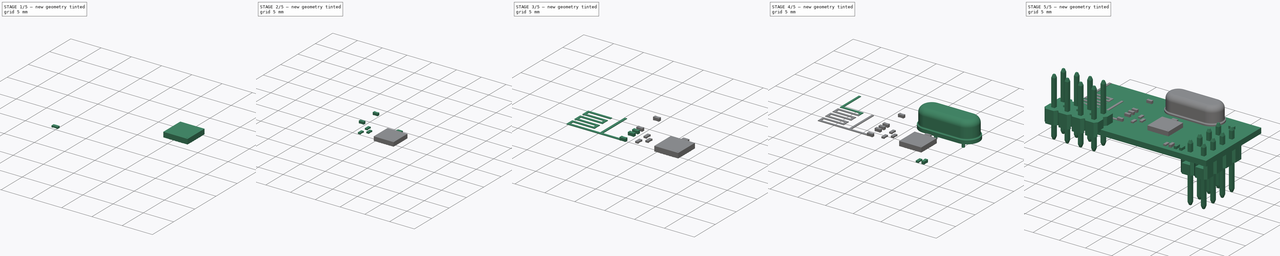
[diagram: build sequence overview — one tinted view per stage of 5, left to right]
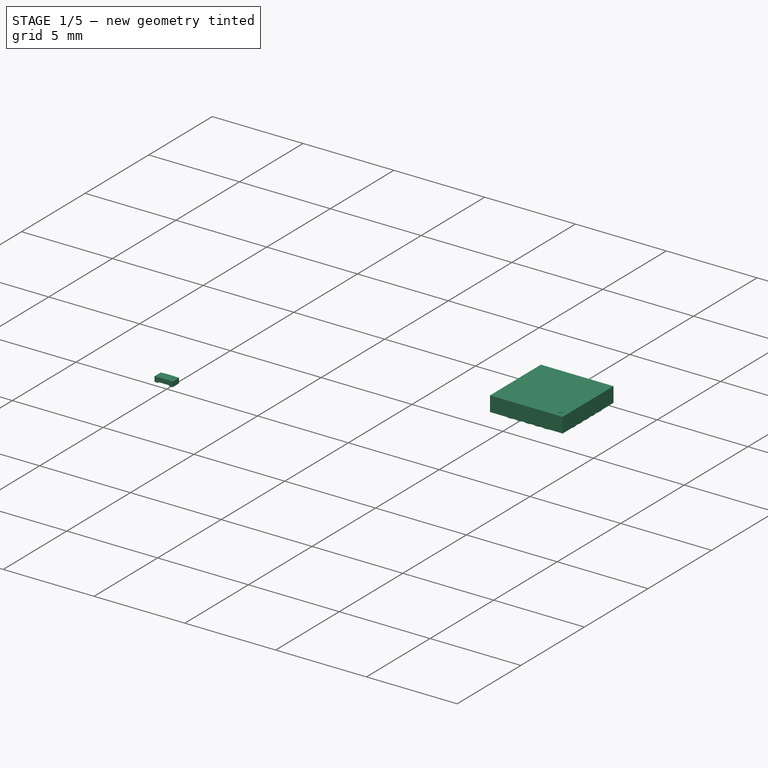
[diagram: stage 1 of 5 — iso view after this stage's code; geometry added in this stage tinted green]
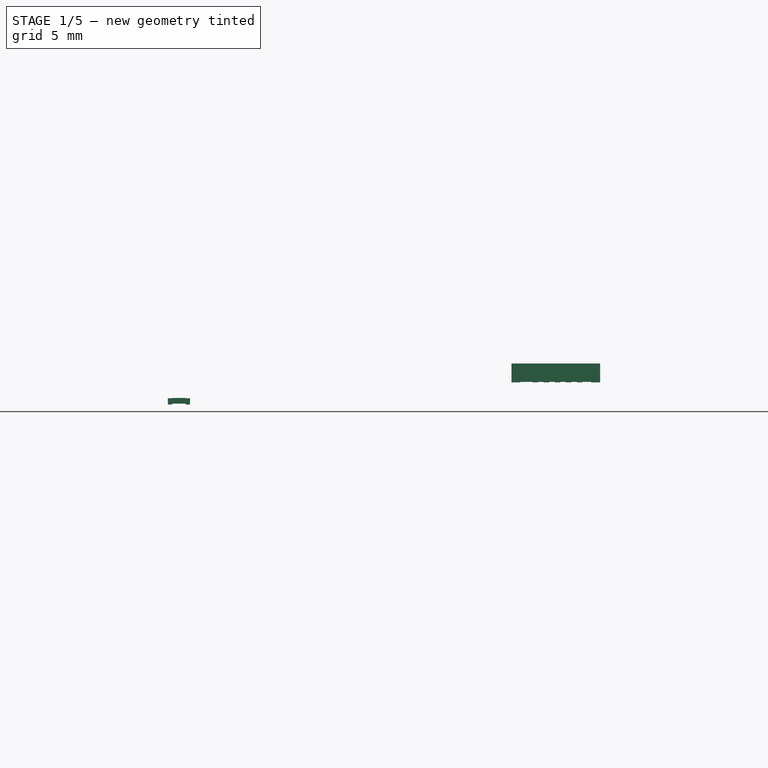
[diagram: stage 1 of 5 — front view after this stage's code; geometry added in this stage tinted green]
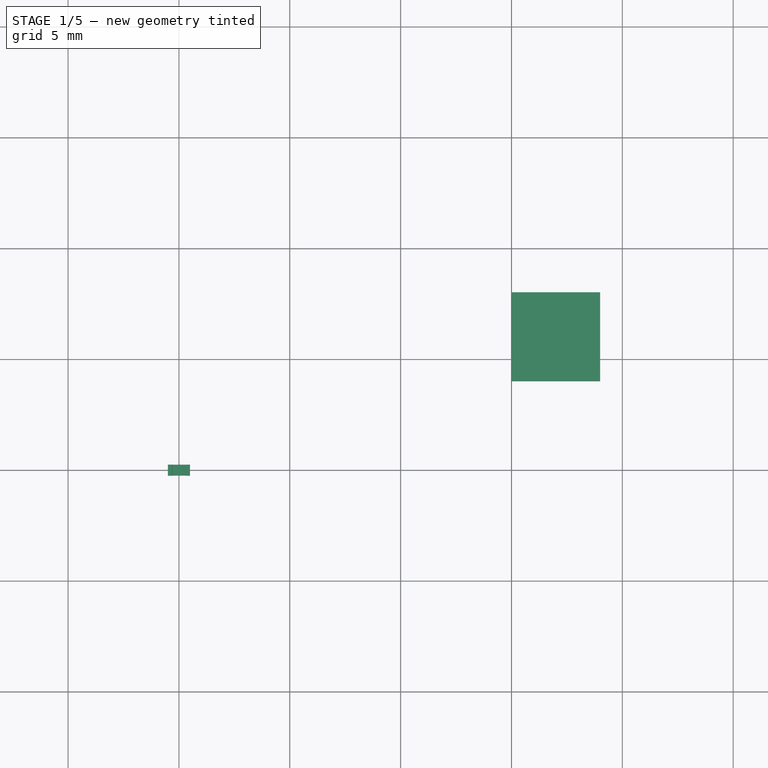
[diagram: stage 1 of 5 — top view after this stage's code; geometry added in this stage tinted green]
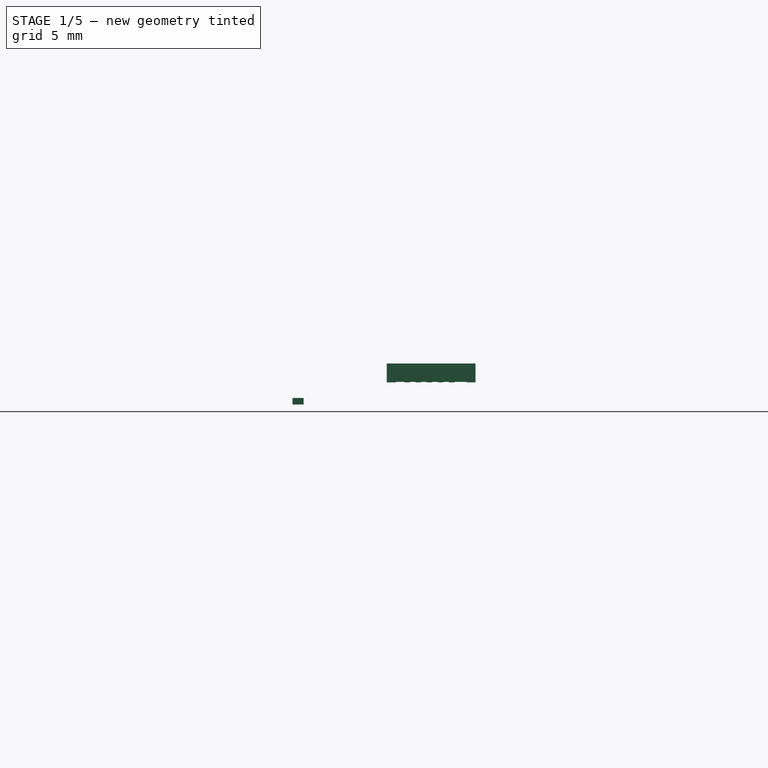
[diagram: stage 1 of 5 — right view after this stage's code; geometry added in this stage tinted green]
FCSTD DOCUMENT  (FreeCAD 0.14R3702 (Git))
Label: Nordic NRF24L01_plus
License: CC-BY 3.0
LicenseURL: http://creativecommons.org/licenses/by/3.0/
objects: Part::MultiFuse×22, Part::Box×20, Part::FeaturePython×16, App::DocumentObjectGroup×5, Part::Cylinder×4, PartDesign::Pad×3, Part::Mirroring×3, PartDesign::Pocket×2, Part::Feature×2, Part::Fillet×2, Sketcher::SketchObject×2, Part::Loft×1, PartDesign::Revolution×1, Part::Cut×1, App::Annotation×1
note: 85 computed .brp shape members not serialized (recipe doc carries the construction recipe); baked Part::Feature solids carry a one-line shape summary decoded from their .brp

FEATURE [Part::FeaturePython] Clone002  label="body001"  # WARN: FeaturePython — macro-defined, semantics opaque (R4)
  Placement = pos=(-0.46,-0.24,0.04) rot=(0,0,1;0rad)
  Scale = (1,1,1)
FEATURE [Part::FeaturePython] Clone003  label="side-right"  # WARN: FeaturePython — macro-defined, semantics opaque (R4)
  Placement = pos=(0.3,4.3713e-08,0) rot=(1,0,0;1.5708rad)
  Scale = (1,1,1)
FEATURE [Part::FeaturePython] Clone004  label="top-part"  # WARN: FeaturePython — macro-defined, semantics opaque (R4)
  Scale = (1,1,1)
FEATURE [Part::FeaturePython] Clone005  label="side-left"  # WARN: FeaturePython — macro-defined, semantics opaque (R4)
  Scale = (1,1,1)
FEATURE [Part::Box] Box019  label="Cubo015"
  Height = 0.83
  Length = 4
  Width = 4
FEATURE [Part::Cylinder] Cylinder002  label="Cilindro"
  Angle = 360
  Height = 0.198
  Placement = pos=(0.3,0.3,0.8) rot=(0,0,1;0rad)
  Radius = 0.1
FEATURE [Part::Cut] Cut  label="body003"
  Base = -> Box019
  Placement = pos=(19,4,1.02) rot=(0,0,1;1.5708rad)
  Tool = -> Cylinder002
FEATURE [Part::Cylinder] Cylinder003  label="Cilindro001"
  Angle = 360
  Height = 0.2
  Placement = pos=(0,0.125,0) rot=(0,0,1;0rad)
  Radius = 0.125
FEATURE [Part::Box] Box020  label="Cubo016"
  Height = 0.2
  Length = 0.275
  Width = 0.25
FEATURE [Part::MultiFuse] Fusion020  label="pad_001"
  Placement = pos=(0.275,0,-0.02) rot=(0,0,1;3.14159rad)
  Shapes = -> [Cylinder003,Box020]
FEATURE [Part::FeaturePython] Array004  # Draft array (typed FeaturePython)
  Angle = 360
  ArrayType = 0
  Axis = (0,0,1)
  Base = -> Fusion020
  Center = (0,0,0)
  IntervalX = (1,0,0)
  IntervalY = (0,0.5,0)
  IntervalZ = (0,0,1)
  NumberPolar = 1
  NumberX = 1
  NumberY = 5
  NumberZ = 1
  Placement = pos=(0,-2.8,0) rot=(0,0,1;0rad)
FEATURE [Part::FeaturePython] Clone011  label="Clone of Array"  # Draft clone (typed FeaturePython)
  Objects = -> [Array004]
  Placement = pos=(4,-1.05,0) rot=(0,0,1;3.14159rad)
  Scale = (1,1,1)
FEATURE [Part::FeaturePython] Clone012  label="Clone of Clone of Array"  # Draft clone (typed FeaturePython)
  Objects = -> [Clone011]
  Placement = pos=(1.05,0,0) rot=(0,0,-1;1.5708rad)
  Scale = (1,1,1)
FEATURE [Part::FeaturePython] Clone013  label="Clone of Clone of Clone of Array"  # Draft clone (typed FeaturePython)
  Objects = -> [Clone012]
  Placement = pos=(2.8,-4,0) rot=(0,0,1;1.5708rad)
  Scale = (1,1,1)
FEATURE [Part::MultiFuse] Fusion021  label="pads"
  Placement = pos=(19,4,1.02) rot=(0,0,1;3.14159rad)
  Shapes = -> [Array004,Clone011,Clone012,Clone013]
FEATURE [App::Annotation] Text
  LabelText = NRF | 24L01+
  Position = (18.3,5.25,1.85)
FEATURE [App::DocumentObjectGroup] Grupo  label="Module nRF24L01+"
  Group = -> [Group,Group001,Group002,Fusion001,Fusion002,Fusion003,Fusion004,Fusion005,Fusion006,Group003,Fusion009,Fusion011,Fusion012,Fusion013,Fusion014,Fusion015,Fusion016,Fusion017,Fusion018,Fusion019,Cut,Fusion021,Text,Box,Fusion010]
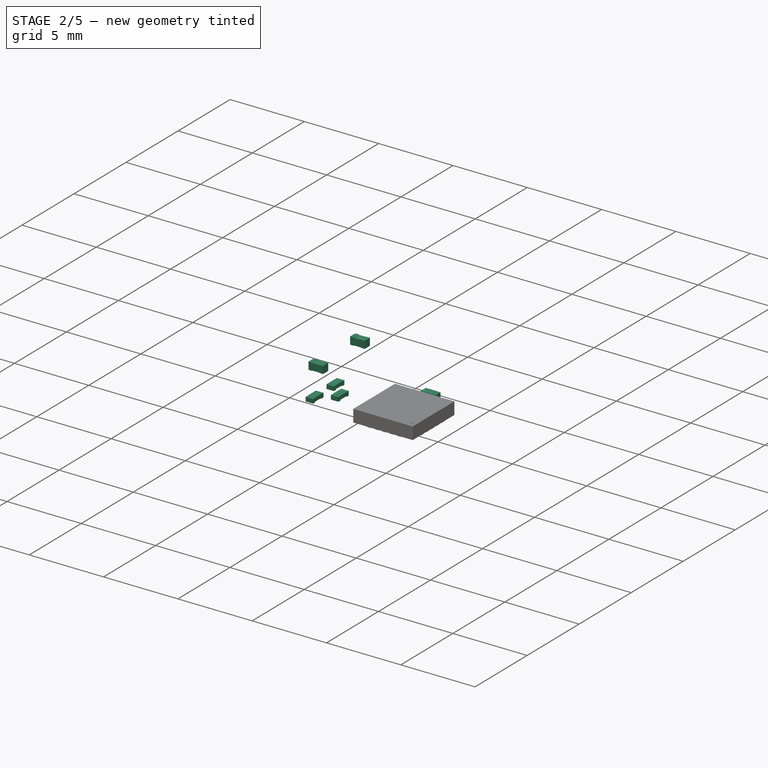
[diagram: stage 2 of 5 — iso view after this stage's code; geometry added in this stage tinted green]
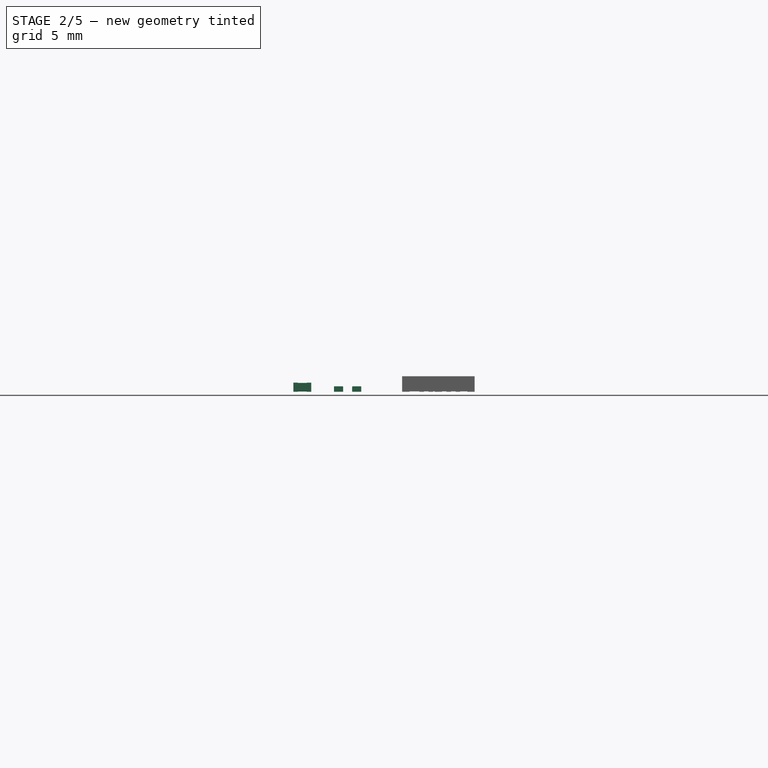
[diagram: stage 2 of 5 — front view after this stage's code; geometry added in this stage tinted green]
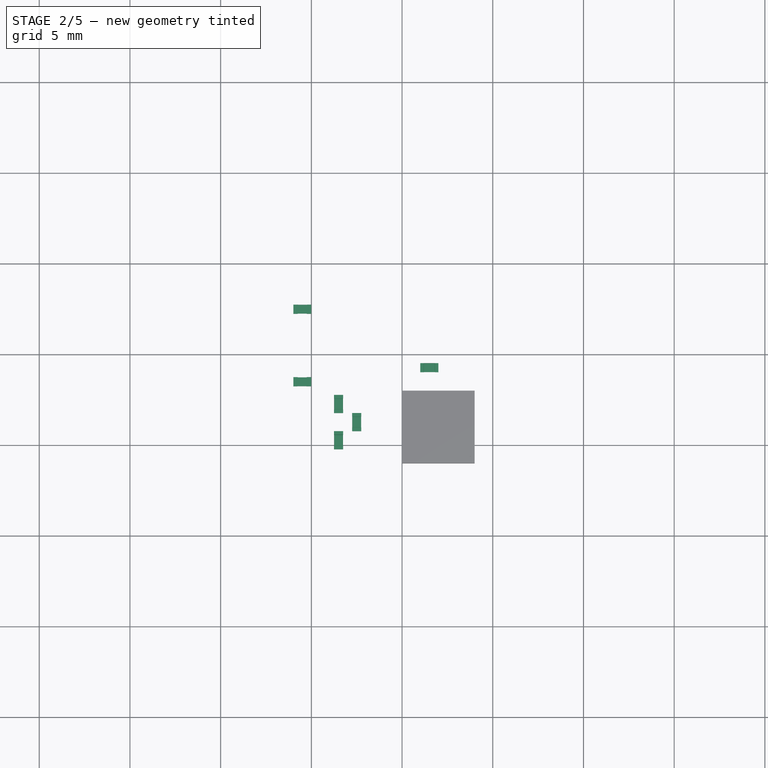
[diagram: stage 2 of 5 — top view after this stage's code; geometry added in this stage tinted green]
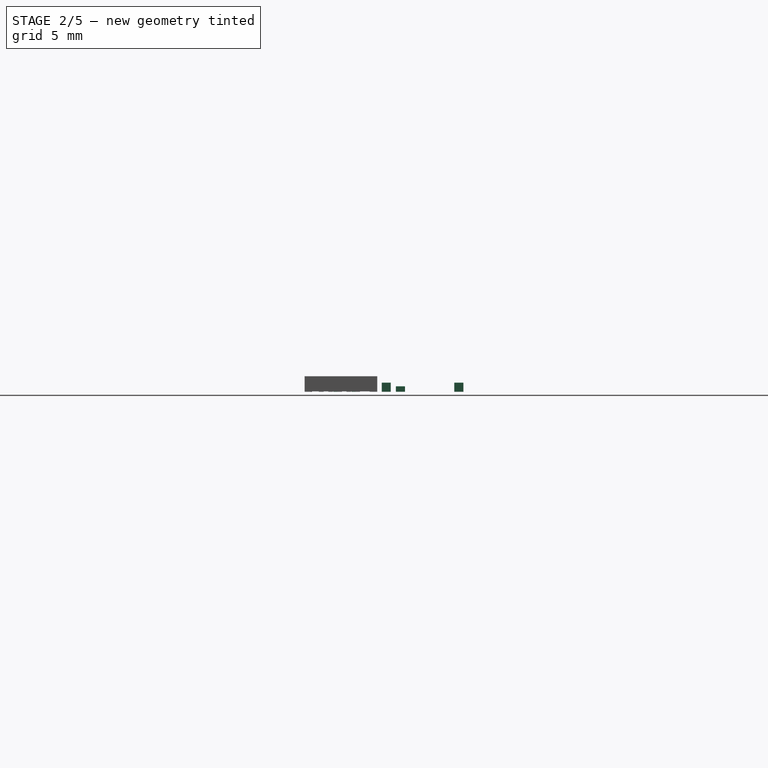
[diagram: stage 2 of 5 — right view after this stage's code; geometry added in this stage tinted green]
FEATURE [App::DocumentObjectGroup] Group001  label="pin-src"
  Group = -> [Loft,Pad,Part__Mirroring,Fusion,Array001]
FEATURE [Part::Feature] Array002  label="pin-support-array"
  Placement = pos=(27.5,9.1,0) rot=(0.707107,-0.707107,0;3.14159rad)
  shape: bbox 5.08 x 10.16 x 2.54 mm, 176 faces, 8 solids (baked)
FEATURE [Part::Feature] Array003  label="pin-array001"
  Placement = pos=(27.5,9.1,0) rot=(0.707107,-0.707107,0;3.14159rad)
  shape: bbox 3.18 x 8.26 x 11.2 mm, 112 faces, 8 solids (baked)
FEATURE [Part::Box] Box001  label="Cube"
  Height = 0.47
  Length = 0.5
  Placement = pos=(-0.25,-0.24,0.015) rot=(0,0,1;0rad)
  Width = 0.48
FEATURE [Part::Fillet] Fillet  label="body-src"
  Base = -> Box001
  Edges = 4 edges r=0.01: [Edge9,Edge10,Edge11,Edge12]
FEATURE [Part::FeaturePython] Clone  label="body"  # Draft clone (typed FeaturePython)
  Objects = -> [Fillet]
  Scale = (1,1,1)
FEATURE [Part::Box] Box002  label="side-src"
  Height = 0.5
  Length = 0.25
  Placement = pos=(-0.4925,-0.25,0) rot=(0,0,1;0rad)
  Width = 0.5
FEATURE [App::DocumentObjectGroup] Group002  label="src"
  Group = -> [Fillet,Box002,Fillet001]
FEATURE [Part::Mirroring] Part__Mirroring001  label="right-side"
  Base = (0,0,0)
  Normal = (1,0,0)
FEATURE [Part::MultiFuse] Fusion014  label="c_008"
  Placement = pos=(9.5,8.5,1) rot=(0,0,1;0rad)
  Shapes = -> [Box002,Part__Mirroring001,Clone]
FEATURE [Part::MultiFuse] Fusion015  label="c_009"
  Placement = pos=(9.5,12.5,1) rot=(0,0,1;0rad)
  Shapes = -> [Box002,Part__Mirroring001,Clone]
FEATURE [Part::FeaturePython] Clone007  label="body002"  # WARN: FeaturePython — macro-defined, semantics opaque (R4)
  Placement = pos=(-0.46,-0.24,0.04) rot=(0,0,1;0rad)
  Scale = (1,1,1)
FEATURE [Part::FeaturePython] Clone008  label="side-right001"  # WARN: FeaturePython — macro-defined, semantics opaque (R4)
  Placement = pos=(0.3,4.3713e-08,0) rot=(1,0,0;1.5708rad)
  Scale = (1,1,1)
FEATURE [Part::FeaturePython] Clone009  label="top-part001"  # WARN: FeaturePython — macro-defined, semantics opaque (R4)
  Scale = (1,1,1)
FEATURE [Part::FeaturePython] Clone010  label="side-left001"  # WARN: FeaturePython — macro-defined, semantics opaque (R4)
  Scale = (1,1,1)
FEATURE [Part::MultiFuse] Fusion016  label="r_002"
  Placement = pos=(16.5,9.28,1) rot=(0,0,1;0rad)
  Shapes = -> [Clone010,Clone009,Clone008,Clone007]
FEATURE [Part::MultiFuse] Fusion017  label="r_003"
  Placement = pos=(11.5,5.28,1) rot=(0,0,1;1.5708rad)
  Shapes = -> [Clone005,Clone004,Clone003,Clone002]
FEATURE [Part::MultiFuse] Fusion018  label="r_004"
  Placement = pos=(11.5,7.28,1) rot=(0,0,1;1.5708rad)
  Shapes = -> [Clone005,Clone004,Clone003,Clone002]
FEATURE [Part::MultiFuse] Fusion019  label="r_005"
  Placement = pos=(12.5,6.28,1) rot=(0,0,1;1.5708rad)
  Shapes = -> [Clone005,Clone004,Clone003,Clone002]
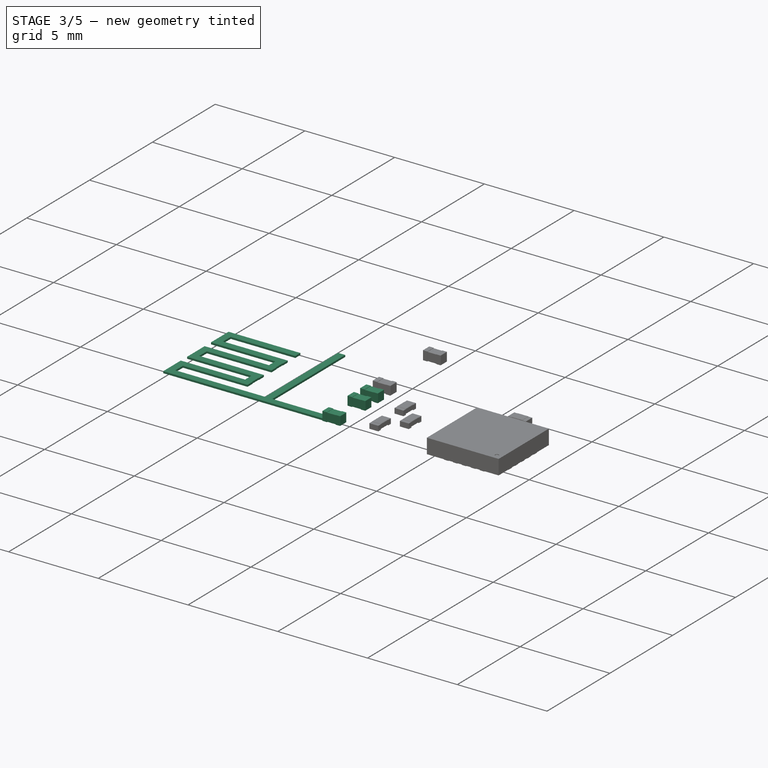
[diagram: stage 3 of 5 — iso view after this stage's code; geometry added in this stage tinted green]
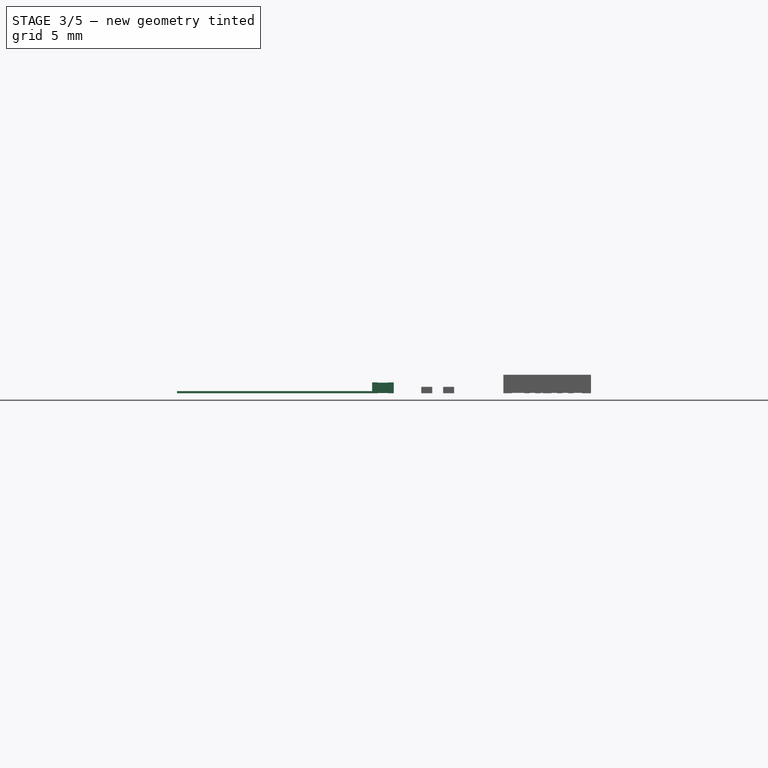
[diagram: stage 3 of 5 — front view after this stage's code; geometry added in this stage tinted green]
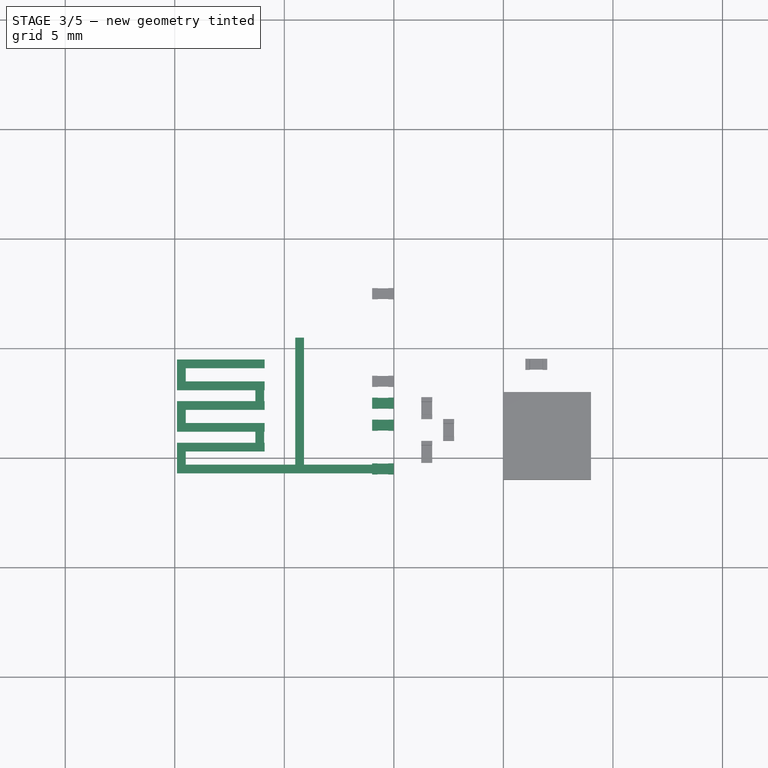
[diagram: stage 3 of 5 — top view after this stage's code; geometry added in this stage tinted green]
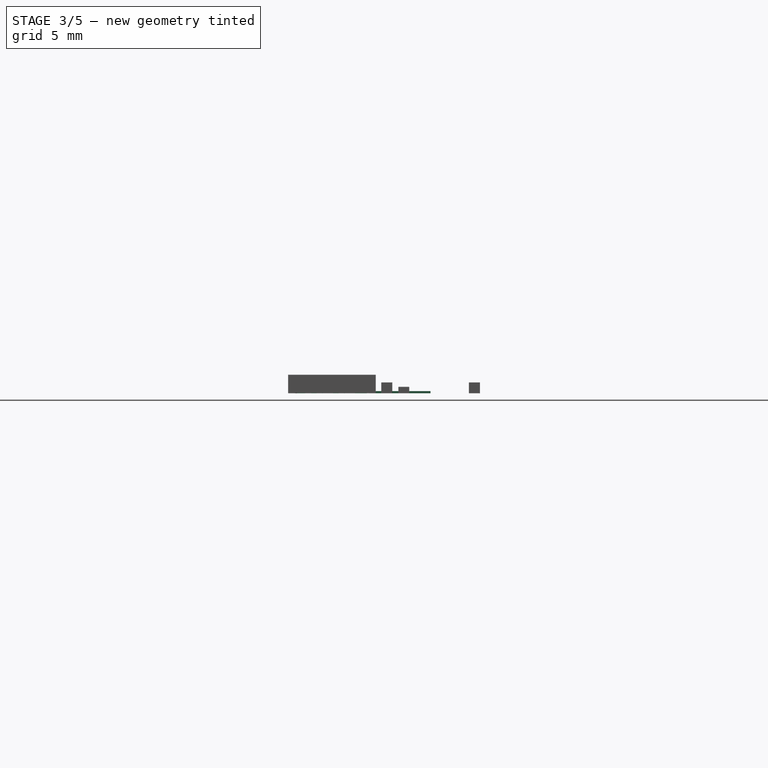
[diagram: stage 3 of 5 — right view after this stage's code; geometry added in this stage tinted green]
FEATURE [Part::Box] Box007  label="Cubo003"
  Height = 0.1
  Length = 0.4
  Placement = pos=(0.1,9.5,1) rot=(0,0,-1;1.5708rad)
  Width = 4
FEATURE [Part::Box] Box008  label="Cubo004"
  Height = 0.1
  Length = 0.4
  Placement = pos=(0.1,8.5,1) rot=(0,0,1;0rad)
  Width = 1
FEATURE [Part::Box] Box009  label="Cubo005"
  Height = 0.1
  Length = 0.4
  Placement = pos=(0.1,8.5,1) rot=(0,0,-1;1.5708rad)
  Width = 4
FEATURE [Part::Box] Box010  label="Cubo006"
  Height = 0.1
  Length = 0.4
  Placement = pos=(3.68,7.5,1) rot=(0,0,1;0rad)
  Width = 1
FEATURE [Part::Box] Box011  label="Cubo007"
  Height = 0.1
  Length = 0.4
  Placement = pos=(0.1,7.6,1) rot=(0,0,-1;1.5708rad)
  Width = 4
FEATURE [Part::Box] Box012  label="Cubo008"
  Height = 0.1
  Length = 0.4
  Placement = pos=(0.1,6.6,1) rot=(0,0,1;0rad)
  Width = 1
FEATURE [Part::Box] Box013  label="Cubo009"
  Height = 0.1
  Length = 0.4
  Placement = pos=(0.1,6.6,1) rot=(0,0,-1;1.5708rad)
  Width = 4
FEATURE [Part::Box] Box014  label="Cubo010"
  Height = 0.1
  Length = 0.4
  Placement = pos=(3.68,5.6,1) rot=(0,0,1;0rad)
  Width = 1
FEATURE [Part::Box] Box015  label="Cubo011"
  Height = 0.1
  Length = 0.4
  Placement = pos=(0.1,5.7,1) rot=(0,0,-1;1.5708rad)
  Width = 4
FEATURE [Part::Box] Box016  label="Cubo012"
  Height = 0.1
  Length = 0.4
  Placement = pos=(0.1,4.7,1) rot=(0,0,1;0rad)
  Width = 1
FEATURE [Part::Box] Box017  label="Cubo013"
  Height = 0.1
  Length = 0.4
  Placement = pos=(0.1,4.7,1) rot=(0,0,-1;1.5708rad)
  Width = 9
FEATURE [Part::Box] Box018  label="Cubo014"
  Height = 0.1
  Length = 0.4
  Placement = pos=(5.5,4.5,1) rot=(0,0,1;0rad)
  Width = 6
FEATURE [Part::MultiFuse] Fusion011  label="c_005"
  Placement = pos=(9.5,4.5,1) rot=(0,0,1;0rad)
  Shapes = -> [Box002,Part__Mirroring001,Clone]
FEATURE [Part::MultiFuse] Fusion012  label="c_006"
  Placement = pos=(9.5,6.5,1) rot=(0,0,1;0rad)
  Shapes = -> [Box002,Part__Mirroring001,Clone]
FEATURE [Part::MultiFuse] Fusion013  label="c_007"
  Placement = pos=(9.5,7.5,1) rot=(0,0,1;0rad)
  Shapes = -> [Box002,Part__Mirroring001,Clone]
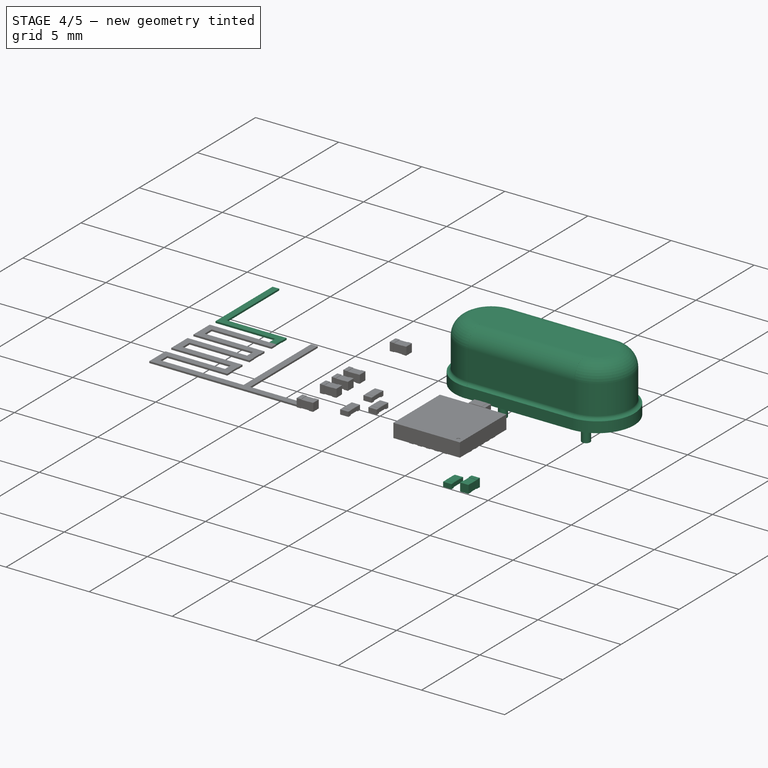
[diagram: stage 4 of 5 — iso view after this stage's code; geometry added in this stage tinted green]
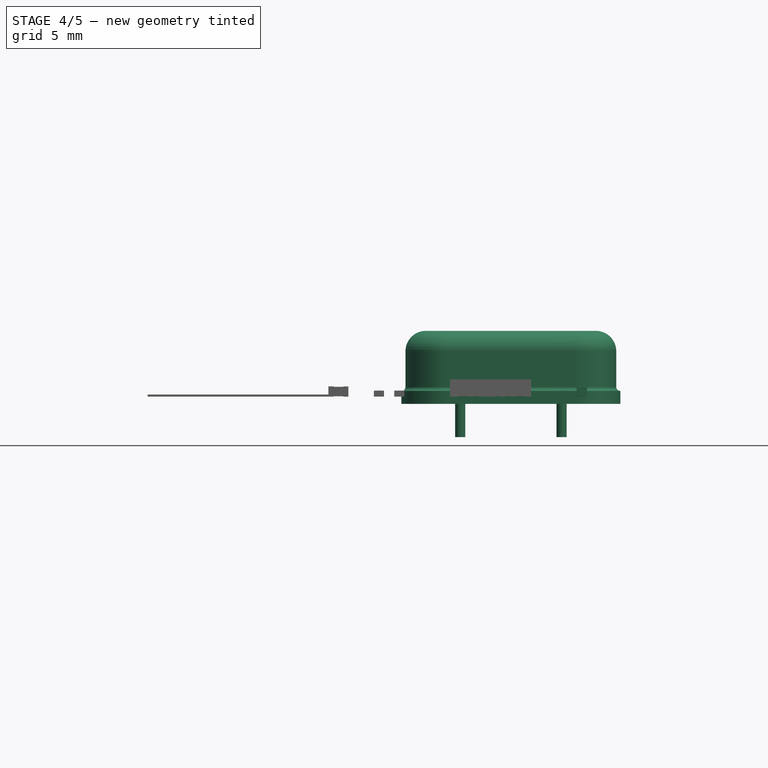
[diagram: stage 4 of 5 — front view after this stage's code; geometry added in this stage tinted green]
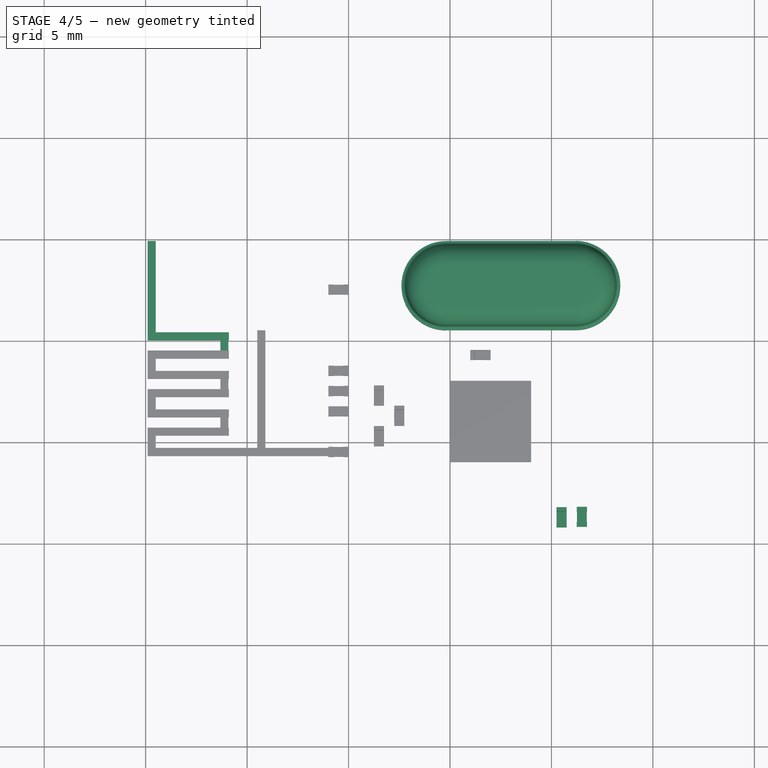
[diagram: stage 4 of 5 — top view after this stage's code; geometry added in this stage tinted green]
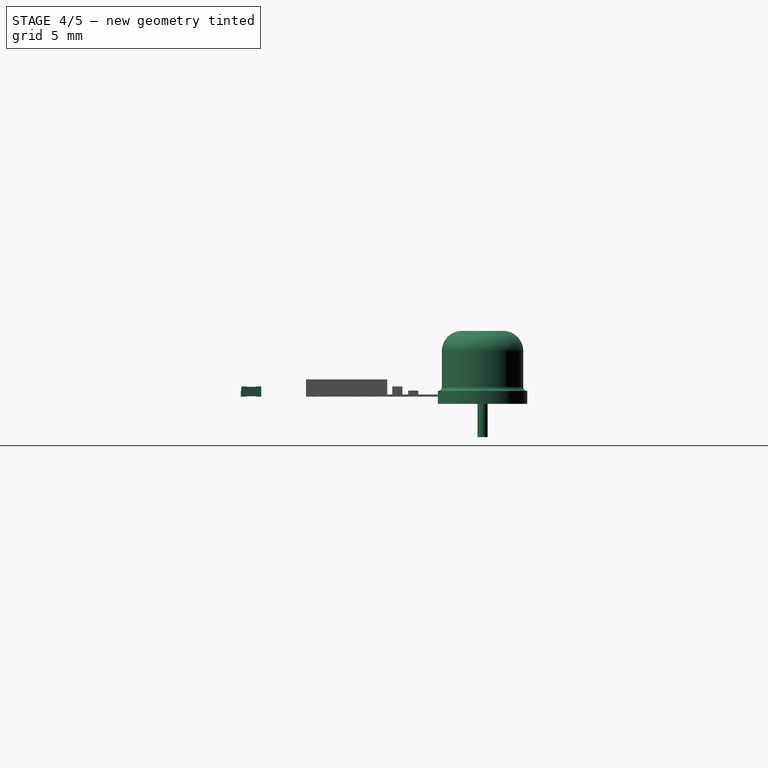
[diagram: stage 4 of 5 — right view after this stage's code; geometry added in this stage tinted green]
FEATURE [Part::MultiFuse] Fusion005  label="c_004"
  Placement = pos=(21.5,1.3,1) rot=(0,0,-1;1.5708rad)
  Shapes = -> [Box002,Part__Mirroring001,Clone]
FEATURE [Part::MultiFuse] Fusion006  label="r_001"
  Placement = pos=(20.5,1.28,1) rot=(0,0,1;1.5708rad)
  Shapes = -> [Clone005,Clone004,Clone003,Clone002]
FEATURE [Part::Box] Box004  label="Cubo"
  Height = 0.1
  Length = 0.4
  Placement = pos=(0.1,10.4,1) rot=(0,0,1;0rad)
  Width = 4.5
FEATURE [Part::Box] Box005  label="Cubo001"
  Height = 0.1
  Length = 0.4
  Placement = pos=(0.1,10.4,1) rot=(0,0,-1;1.5708rad)
  Width = 4
FEATURE [Part::Box] Box006  label="Cubo002"
  Height = 0.1
  Length = 0.4
  Placement = pos=(3.68,9.4,1) rot=(0,0,1;0rad)
  Width = 1
FEATURE [Sketcher::SketchObject] Sketch  label="xtal-side-sketch"
  Placement = pos=(3.195,0.005,0) rot=(0.57735,0.57735,0.57735;2.0944rad)
  sketch-geometry (7):
    g0: LineSegment StartX=0 StartY=4.24 StartZ=0 EndX=-1 EndY=4.24 EndZ=0
    g1: LineSegment StartX=-2 StartY=3.24 StartZ=0 EndX=-2 EndY=1.48 EndZ=0
    g2: LineSegment StartX=-2.2 StartY=1.28 StartZ=0 EndX=-2.2 EndY=0.64 EndZ=0
    g3: LineSegment StartX=0 StartY=4.24 StartZ=0 EndX=0 EndY=0.64 EndZ=0
    g4: ArcOfCircle CenterX=-1 CenterY=3.24 CenterZ=0 NormalX=0 NormalY=0 NormalZ=1 Radius=1 StartAngle=1.5708 EndAngle=3.14159
    g5: ArcOfCircle CenterX=-2.2 CenterY=1.48 CenterZ=0 NormalX=0 NormalY=0 NormalZ=1 Radius=0.2 StartAngle=4.71239 EndAngle=6.28319
    g6: LineSegment StartX=-2.2 StartY=0.64 StartZ=0 EndX=0 EndY=0.64 EndZ=0
  constraints (20):
    c: Horizontal(g0)
    c: Vertical(g1)
    c: Vertical(g2)
    c: PointOnObject(g0,g-2)
    c: Vertical(g3)
    c: Coincident(g3,g0)
    c: Tangent(g0,g4)
    c: Tangent(g1,g4)
    c: Tangent(g1,g5)
    c: Radius(g4) = 1
    c: DistanceX(g0) = -1
    c: DistanceY(g3) = -3.6
    c: Horizontal(g6)
    c: Coincident(g6,g3)
    c: Coincident(g6,g2)
    c: DistanceY(g-1,g3) = 0.64
    c: DistanceY(g1) = -1.76
    c: Coincident(g2,g5)
    c: Perpendicular(g2,g5)
    c: Radius(g5) = 0.2
FEATURE [PartDesign::Revolution] Revolution  label="xtal-side001"
  Angle = 180
  Axis = (0,0,1)
  Base = (3.195,0.005,0)
  Placement = pos=(3.195,0.005,0) rot=(0.57735,0.57735,0.57735;2.0944rad)
  ReferenceAxis = -> Sketch [V_Axis]
  Sketch = -> Sketch
FEATURE [Sketcher::SketchObject] Sketch001  label="xtal-side-sketch001"
  Placement = pos=(0,0,0) rot=(0.57735,0.57735,0.57735;2.0944rad)
  sketch-geometry (7):
    g0: LineSegment StartX=0 StartY=4.24 StartZ=0 EndX=-1 EndY=4.24 EndZ=0
    g1: LineSegment StartX=-2 StartY=3.24 StartZ=0 EndX=-2 EndY=1.48 EndZ=0
    g2: LineSegment StartX=-2.2 StartY=1.28 StartZ=0 EndX=-2.2 EndY=0.64 EndZ=0
    g3: LineSegment StartX=0 StartY=4.24 StartZ=0 EndX=0 EndY=0.64 EndZ=0
    g4: ArcOfCircle CenterX=-1 CenterY=3.24 CenterZ=0 NormalX=0 NormalY=0 NormalZ=1 Radius=1 StartAngle=1.5708 EndAngle=3.14159
    g5: ArcOfCircle CenterX=-2.2 CenterY=1.48 CenterZ=0 NormalX=0 NormalY=0 NormalZ=1 Radius=0.2 StartAngle=4.71239 EndAngle=6.28319
    g6: LineSegment StartX=-2.2 StartY=0.64 StartZ=0 EndX=0 EndY=0.64 EndZ=0
  constraints (20):
    c: Horizontal(g0)
    c: Vertical(g1)
    c: Vertical(g2)
    c: PointOnObject(g0,g-2)
    c: Vertical(g3)
    c: Coincident(g3,g0)
    c: Tangent(g0,g4)
    c: Tangent(g1,g4)
    c: Tangent(g1,g5)
    c: Radius(g4) = 1
    c: DistanceX(g0) = -1
    c: DistanceY(g3) = -3.6
    c: Horizontal(g6)
    c: Coincident(g6,g3)
    c: Coincident(g6,g2)
    c: DistanceY(g-1,g3) = 0.64
    c: DistanceY(g1) = -1.76
    c: Coincident(g2,g5)
    c: Perpendicular(g2,g5)
    c: Radius(g5) = 0.2
FEATURE [PartDesign::Pad] Pad002
  Length = 6.4
  Length2 = 100
  Midplane = true
  Placement = pos=(0,0,0) rot=(0.57735,0.57735,0.57735;2.0944rad)
  Sketch = -> Sketch001
  Type = 0
FEATURE [Part::Mirroring] Part__Mirroring002  label="Pad (Mirror #1)"
  Base = (0,0,0)
  Normal = (0,1,0)
  Source = -> Pad002
FEATURE [Part::MultiFuse] Fusion007
  Shapes = -> [Part__Mirroring002,Pad002]
FEATURE [App::DocumentObjectGroup] Group003  label="xtal-src"
FEATURE [Part::FeaturePython] Clone006  label="xtal-side-2"  # Draft clone (typed FeaturePython)
  Objects = -> [Revolution]
  Placement = pos=(-3.195,-0.005,0) rot=(0.57735,-0.57735,-0.57735;2.0944rad)
  Scale = (1,1,1)
FEATURE [Part::Cylinder] Cylinder  label="pin_001"
  Angle = 360
  Height = 2
  Placement = pos=(-2.5,0,-1) rot=(0,0,1;0rad)
  Radius = 0.25
FEATURE [Part::Cylinder] Cylinder001  label="pin_002"
  Angle = 360
  Height = 2
  Placement = pos=(2.5,0,-1) rot=(0,0,1;0rad)
  Radius = 0.25
FEATURE [Part::MultiFuse] Fusion008  label="pins"
  Shapes = -> [Cylinder,Cylinder001]
FEATURE [Part::MultiFuse] Fusion009  label="xtal-through-hole"
  Placement = pos=(18,12.7,0) rot=(0,0,1;0rad)
  Shapes = -> [Fusion007,Revolution,Clone006,Fusion008]
FEATURE [Part::MultiFuse] Fusion010  label="antena"
  Shapes = -> [Box004,Box005,Box006,Box007,Box008,Box009,Box010,Box011,Box012,Box013,Box014,Box015,Box016,Box017,Box018]
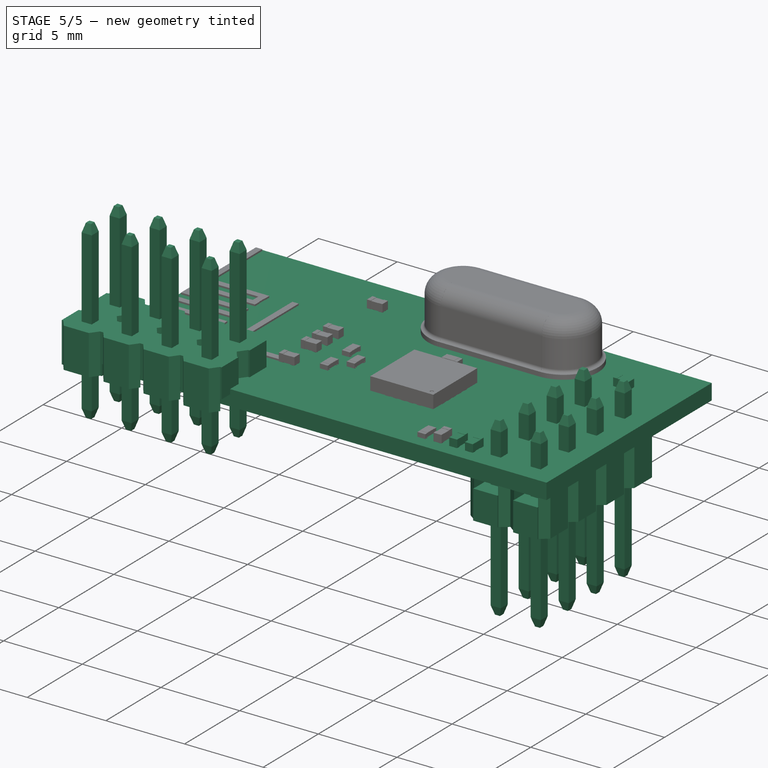
[diagram: stage 5 of 5 — iso view after this stage's code; geometry added in this stage tinted green]
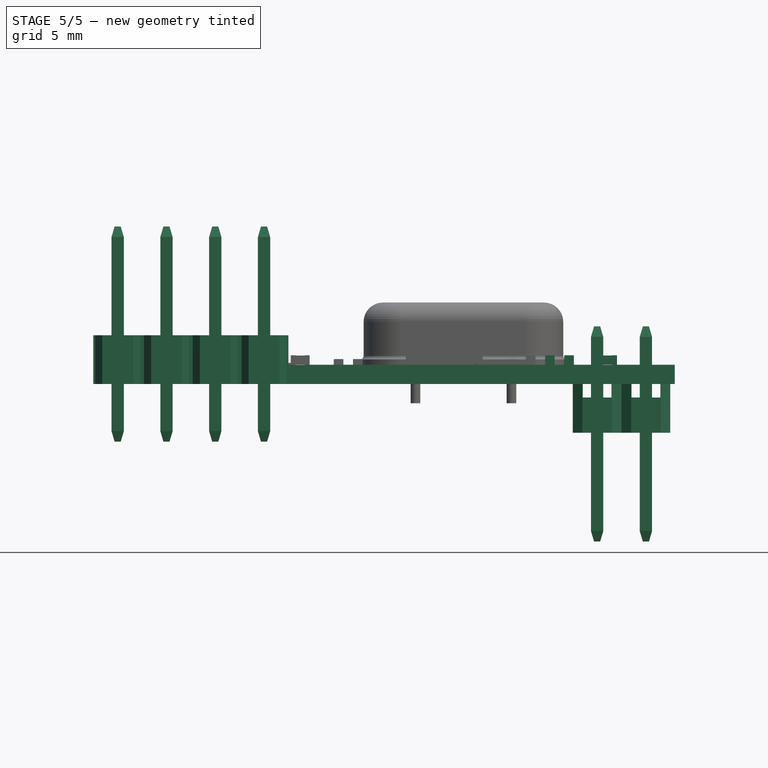
[diagram: stage 5 of 5 — front view after this stage's code; geometry added in this stage tinted green]
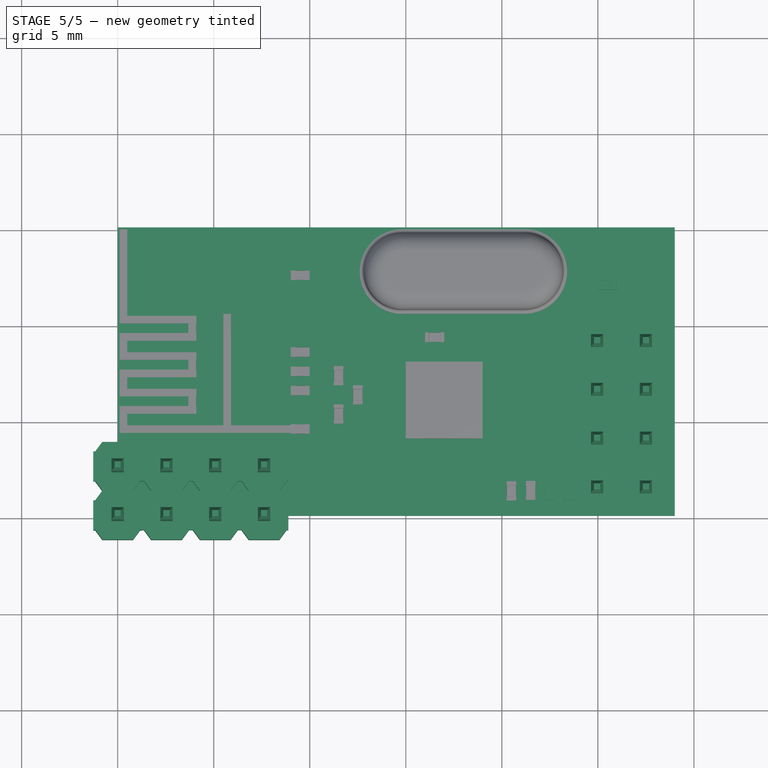
[diagram: stage 5 of 5 — top view after this stage's code; geometry added in this stage tinted green]
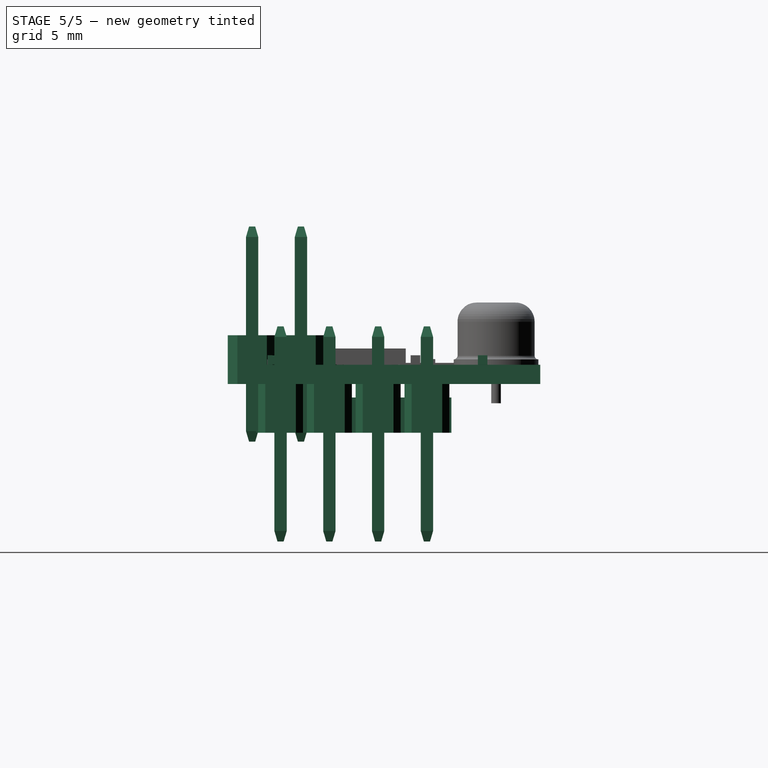
[diagram: stage 5 of 5 — right view after this stage's code; geometry added in this stage tinted green]
FEATURE [Part::Box] Box  label="pcb"
  Height = 1
  Length = 29
  Width = 15
FEATURE [PartDesign::Pad] Pad  label="pin-base"
  Length = 10.108
  Length2 = 100
  Midplane = true
  Type = 0
FEATURE [Part::Loft] Loft  label="pin-end"
  Closed = false
  Placement = pos=(0,0,5.054) rot=(0,0,1;0rad)
  Ruled = false
  Solid = true
FEATURE [Part::Mirroring] Part__Mirroring  label="pin-end (Mirror #1)"
  Base = (0,0,0)
  Normal = (0,0,1)
  Source = -> Loft
FEATURE [Part::MultiFuse] Fusion  label="pin"
  Placement = pos=(0,0,2.6) rot=(0,0,1;0rad)
  Shapes = -> [Pad,Loft,Part__Mirroring]
FEATURE [PartDesign::Pad] Pad001  label="pin-support-main"
  Length = 2.54
  Length2 = 100
  Type = 0
FEATURE [PartDesign::Pocket] Pocket  label="pin-support-cutout-1"
  Length = 5
  Type = 1
FEATURE [PartDesign::Pocket] Pocket001  label="pin-support-cutout-2"
  Length = 0.7
  Type = 0
FEATURE [Part::FeaturePython] Array  # Draft array (typed FeaturePython)
  Angle = 360
  ArrayType = 0
  Axis = (0,0,1)
  Base = -> Pocket001
  Center = (0,0,0)
  IntervalX = (2.54,0,0)
  IntervalY = (0,2.54,0)
  IntervalZ = (0,0,1)
  NumberPolar = 1
  NumberX = 4
  NumberY = 2
  NumberZ = 1
FEATURE [App::DocumentObjectGroup] Group  label="pin-support-src"
  Group = -> [Pad001,Pocket,Pocket001,Array]
FEATURE [Part::FeaturePython] Array001  # Draft array (typed FeaturePython)
  Angle = 360
  ArrayType = 0
  Axis = (0,0,1)
  Base = -> Fusion
  Center = (0,0,0)
  IntervalX = (2.54,0,0)
  IntervalY = (0,2.54,0)
  IntervalZ = (0,0,1)
  NumberPolar = 1
  NumberX = 4
  NumberY = 2
  NumberZ = 1
FEATURE [Part::Fillet] Fillet001  label="left-side-src"
  Base = -> Box002
  Edges = 8 edges r=0.01: [Edge1,Edge2,Edge3,Edge4,Edge9,Edge10,Edge11,Edge12]
FEATURE [Part::MultiFuse] Fusion001  label="pin2x4"
  Shapes = -> [Array002,Array003]
FEATURE [Part::MultiFuse] Fusion002  label="c_001"
  Placement = pos=(25.5,12,1) rot=(0,0,1;0rad)
  Shapes = -> [Box002,Part__Mirroring001,Clone]
FEATURE [Part::MultiFuse] Fusion003  label="c_002"
  Placement = pos=(23.5,1.3,1) rot=(0,0,-1;1.5708rad)
  Shapes = -> [Box002,Part__Mirroring001,Clone]
FEATURE [Part::MultiFuse] Fusion004  label="c_003"
  Placement = pos=(22.5,1.3,1) rot=(0,0,-1;1.5708rad)
  Shapes = -> [Box002,Part__Mirroring001,Clone]
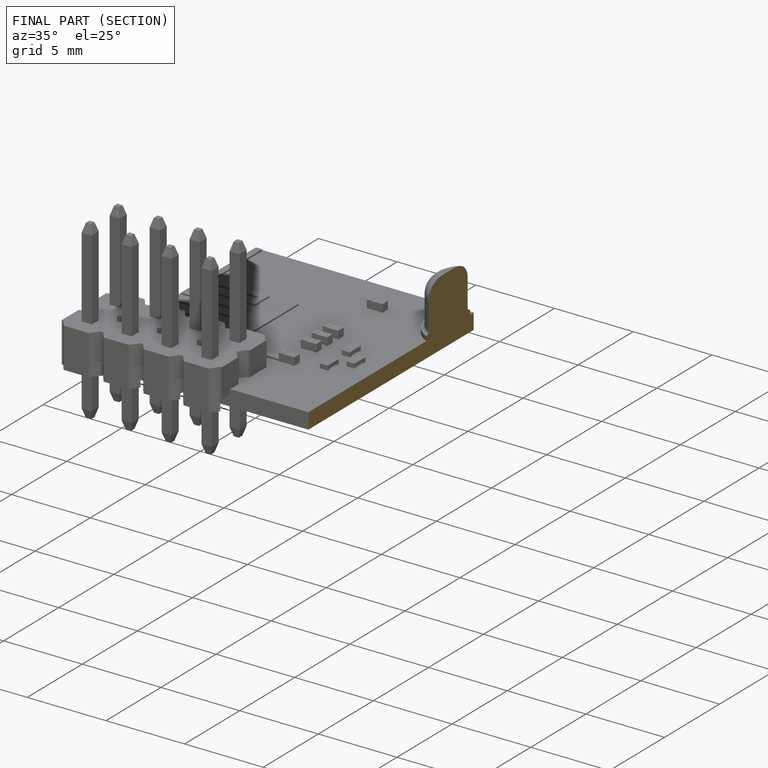
[diagram: finished part — half-section view (interior)]
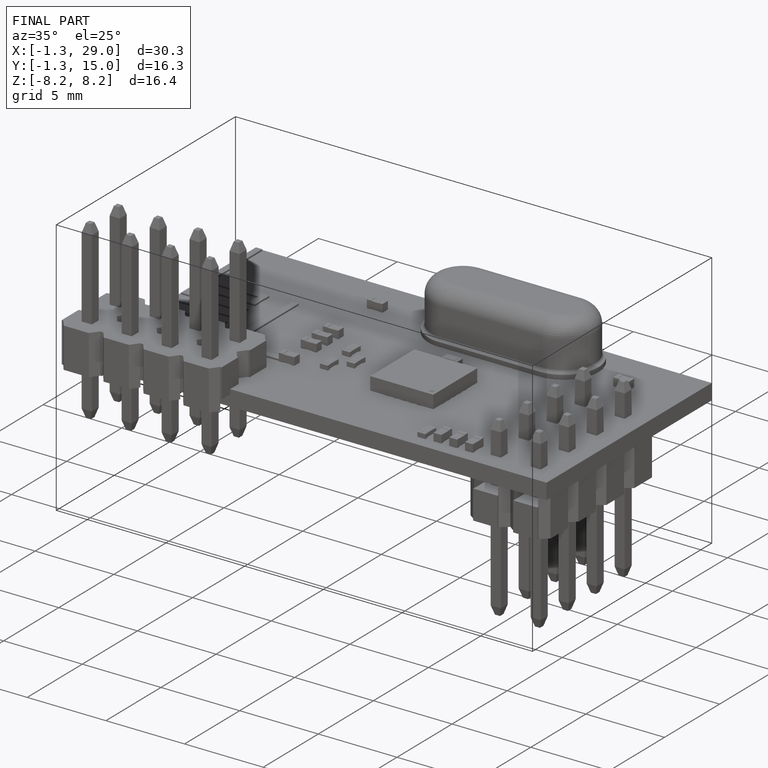
[diagram: finished part — iso view with bounding-box wireframe]
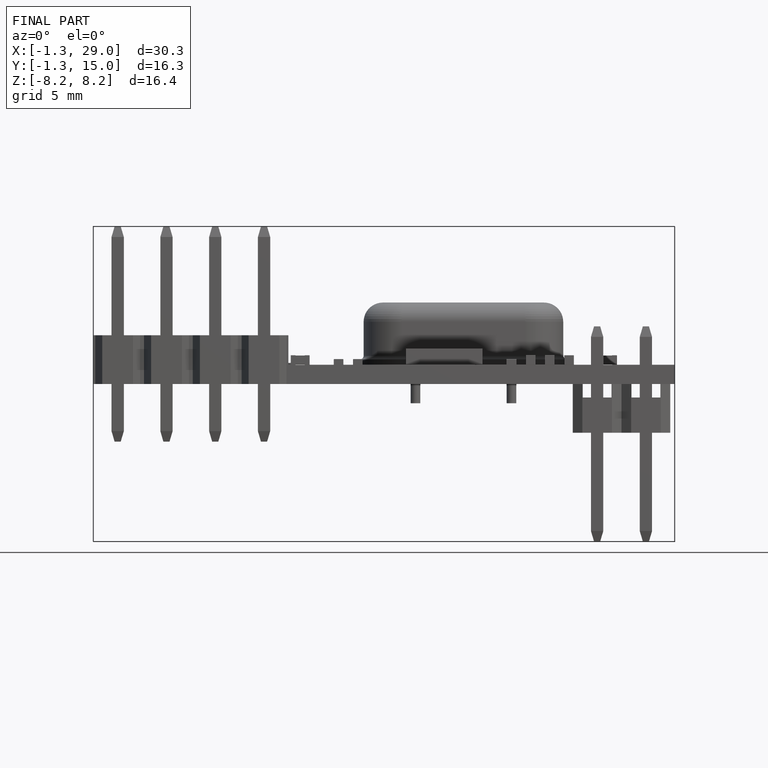
[diagram: finished part — front view with bounding-box wireframe]
